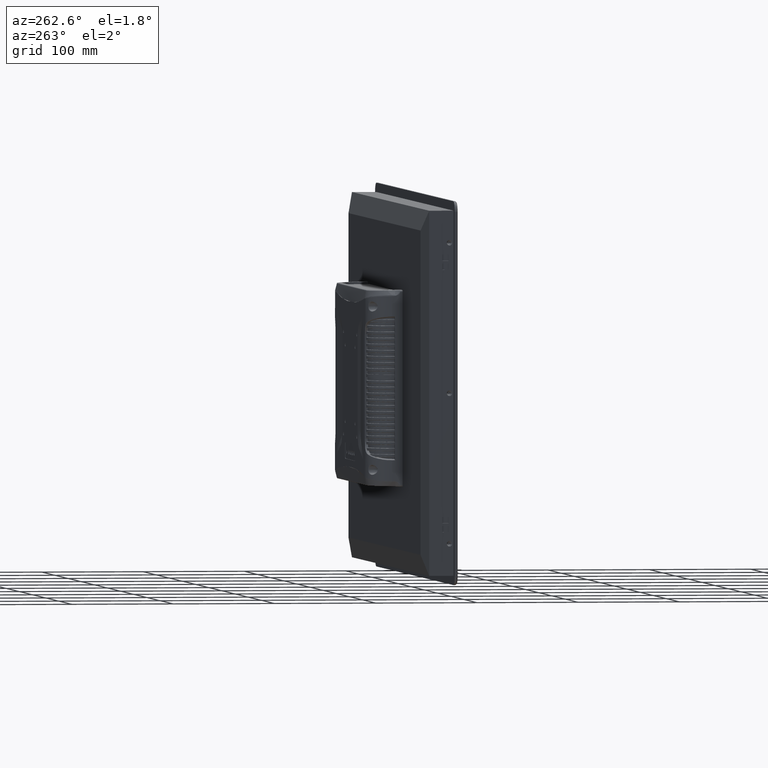
[diagram: clean part render]
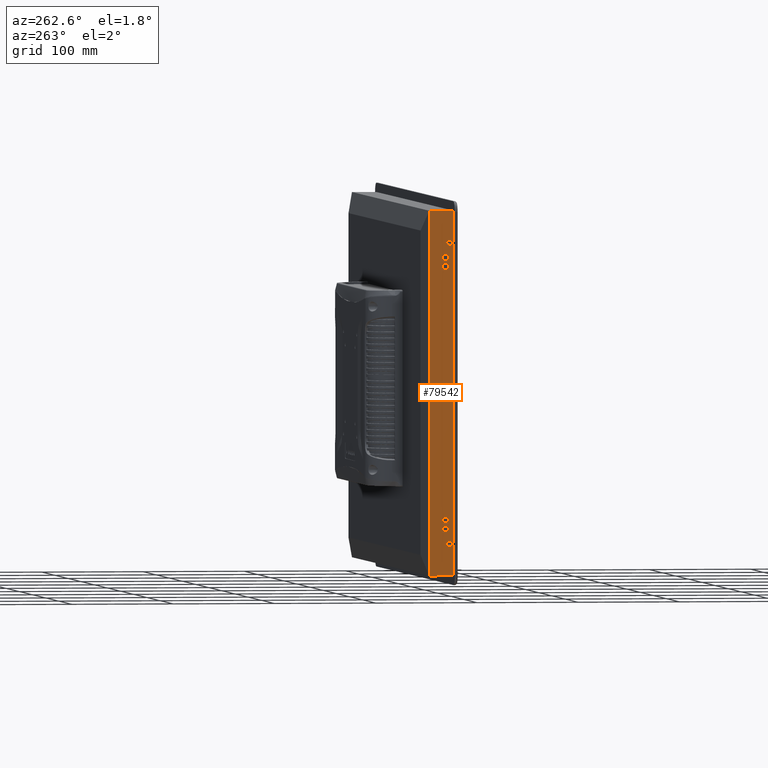
[diagram: same view with one face highlighted and labeled with its STEP entity id]
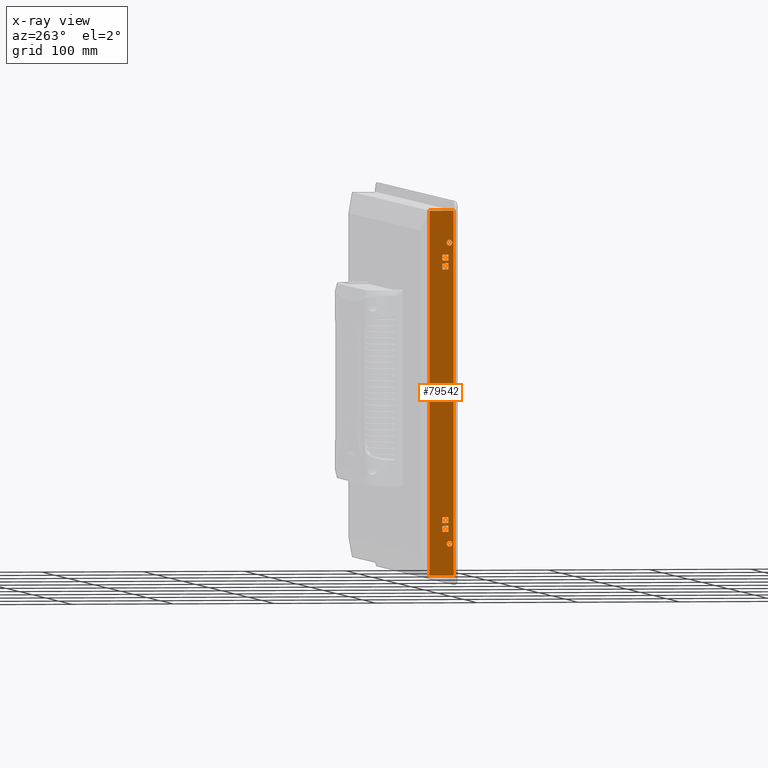
[diagram: x-ray of the same camera — body ghosted, the highlighted face saturated]
A machine part, auxiliary view. The second image highlights one B-rep face of the part: STEP entity #79542.
The next image is the same camera in x-ray: the body ghosted, the highlighted face saturated — about 0% of this face is hidden behind the body in this view.
In plain terms, the highlighted planar face has unit normal (-1, -0, -0).
Its self-contained STEP definition (entity closure, byte-faithful):
#122 = DIRECTION ( 'NONE',  ( 0.0000000000000000000, 0.0000000000000000000, -1.000000000000000000 ) ) ;
#279 = DIRECTION ( 'NONE',  ( 0.0000000000000000000, 0.0000000000000000000, -1.000000000000000000 ) ) ;
#1008 = PLANE ( 'NONE',  #48068 ) ;
#1525 = FACE_BOUND ( 'NONE', #29267, .T. ) ;
#1673 = ORIENTED_EDGE ( 'NONE', *, *, #63782, .T. ) ;
#1805 = VECTOR ( 'NONE', #122, 1000.000000000000000 ) ;
#2274 = LINE ( 'NONE', #30112, #4926 ) ;
#2576 = VERTEX_POINT ( 'NONE', #33419 ) ;
#2615 = VECTOR ( 'NONE', #91192, 1000.000000000000000 ) ;
#2640 = EDGE_CURVE ( 'NONE', #53566, #53206, #83135, .T. ) ;
#3056 = CARTESIAN_POINT ( 'NONE',  ( -293.8999999999999773, 0.5000000000000003331, -2.749999999978054888 ) ) ;
#3110 = LINE ( 'NONE', #87597, #11126 ) ;
#3421 = DIRECTION ( 'NONE',  ( 0.0000000000000000000, 0.0000000000000000000, 1.000000000000000000 ) ) ;
#3621 = DIRECTION ( 'NONE',  ( 0.0000000000000000000, -1.000000000000000000, 0.0000000000000000000 ) ) ;
#3844 = ORIENTED_EDGE ( 'NONE', *, *, #98453, .T. ) ;
#4926 = VECTOR ( 'NONE', #89844, 1000.000000000000000 ) ;
#4964 = DIRECTION ( 'NONE',  ( -0.0000000000000000000, -0.0000000000000000000, 1.000000000000000000 ) ) ;
#5131 = EDGE_LOOP ( 'NONE', ( #65372, #23279, #43103, #76964 ) ) ;
#5720 = EDGE_CURVE ( 'NONE', #53206, #53566, #51456, .T. ) ;
#5787 = CARTESIAN_POINT ( 'NONE',  ( -293.8999999999999773, 0.5000000000000000000, -147.5000000000000284 ) ) ;
#6831 = VERTEX_POINT ( 'NONE', #90597 ) ;
#8489 = LINE ( 'NONE', #100377, #77627 ) ;
#9109 = DIRECTION ( 'NONE',  ( 0.0000000000000000000, -1.000000000000000000, 0.0000000000000000000 ) ) ;
#9350 = DIRECTION ( 'NONE',  ( -0.0000000000000000000, 1.000000000000000000, -0.0000000000000000000 ) ) ;
#9882 = EDGE_CURVE ( 'NONE', #19048, #12127, #27073, .T. ) ;
#10059 = CARTESIAN_POINT ( 'NONE',  ( -293.8999999999999773, 7.499999999999992895, 0.0000000000000000000 ) ) ;
#10304 = EDGE_CURVE ( 'NONE', #51540, #48186, #86747, .T. ) ;
#10478 = EDGE_LOOP ( 'NONE', ( #38991, #30546, #21763, #53658 ) ) ;
#10753 = CARTESIAN_POINT ( 'NONE',  ( -293.8999999999999773, 8.500000000000000000, -178.9000000000000057 ) ) ;
#10925 = CARTESIAN_POINT ( 'NONE',  ( -293.9000000000000341, 8.500000000000000000, 127.2000000000000881 ) ) ;
#11126 = VECTOR ( 'NONE', #38921, 1000.000000000000000 ) ;
#12127 = VERTEX_POINT ( 'NONE', #107124 ) ;
#12961 = CARTESIAN_POINT ( 'NONE',  ( -293.8999999999999773, -3.500000000000000000, 178.9000000000000057 ) ) ;
#13474 = FACE_BOUND ( 'NONE', #84744, .T. ) ;
#14382 = EDGE_CURVE ( 'NONE', #2576, #51540, #98079, .T. ) ;
#14596 = CARTESIAN_POINT ( 'NONE',  ( -293.8999999999999773, 7.499999999999998224, -121.1999999999999744 ) ) ;
#14597 = CARTESIAN_POINT ( 'NONE',  ( -293.9000000000000341, 7.499999999999998224, 127.2000000000000313 ) ) ;
#15712 = DIRECTION ( 'NONE',  ( -0.0000000000000000000, -0.0000000000000000000, 1.000000000000000000 ) ) ;
#16260 = CARTESIAN_POINT ( 'NONE',  ( -293.8999999999999773, 1.499999999999993117, 0.0000000000000000000 ) ) ;
#16416 = LINE ( 'NONE', #87420, #93535 ) ;
#16896 = ORIENTED_EDGE ( 'NONE', *, *, #56053, .T. ) ;
#17059 = DIRECTION ( 'NONE',  ( 1.000000000000000000, 0.0000000000000000000, 0.0000000000000000000 ) ) ;
#17368 = DIRECTION ( 'NONE',  ( -1.000000000000000000, -0.0000000000000000000, -0.0000000000000000000 ) ) ;
#17879 = ORIENTED_EDGE ( 'NONE', *, *, #53831, .T. ) ;
#19048 = VERTEX_POINT ( 'NONE', #68675 ) ;
#20210 = VERTEX_POINT ( 'NONE', #14597 ) ;
#20602 = ORIENTED_EDGE ( 'NONE', *, *, #63893, .T. ) ;
#20640 = VERTEX_POINT ( 'NONE', #71010 ) ;
#21164 = LINE ( 'NONE', #30630, #75700 ) ;
#21763 = ORIENTED_EDGE ( 'NONE', *, *, #24147, .T. ) ;
#22902 = EDGE_LOOP ( 'NONE', ( #29886, #49442, #72015, #16896 ) ) ;
#23216 = ORIENTED_EDGE ( 'NONE', *, *, #14382, .T. ) ;
#23279 = ORIENTED_EDGE ( 'NONE', *, *, #74227, .T. ) ;
#24137 = FACE_BOUND ( 'NONE', #10478, .T. ) ;
#24147 = EDGE_CURVE ( 'NONE', #20210, #19048, #98235, .T. ) ;
#25214 = LINE ( 'NONE', #75666, #2615 ) ;
#25334 = VECTOR ( 'NONE', #15712, 1000.000000000000000 ) ;
#25583 = DIRECTION ( 'NONE',  ( 0.0000000000000000000, 0.0000000000000000000, 1.000000000000000000 ) ) ;
#27057 = EDGE_CURVE ( 'NONE', #56303, #58839, #16416, .T. ) ;
#27073 = LINE ( 'NONE', #77413, #1805 ) ;
#28141 = LINE ( 'NONE', #37437, #70723 ) ;
#28487 = EDGE_CURVE ( 'NONE', #6831, #97777, #77196, .T. ) ;
#28497 = DIRECTION ( 'NONE',  ( 1.000000000000000000, 0.0000000000000000000, 0.0000000000000000000 ) ) ;
#28575 = DIRECTION ( 'NONE',  ( 0.0000000000000000000, 0.0000000000000000000, -1.000000000000000000 ) ) ;
#28921 = DIRECTION ( 'NONE',  ( -0.0000000000000000000, 1.000000000000000000, -0.0000000000000000000 ) ) ;
#29267 = EDGE_LOOP ( 'NONE', ( #105608, #85803, #23216, #97434 ) ) ;
#29611 = DIRECTION ( 'NONE',  ( 0.0000000000000000000, 0.0000000000000000000, 1.000000000000000000 ) ) ;
#29886 = ORIENTED_EDGE ( 'NONE', *, *, #85009, .F. ) ;
#30112 = CARTESIAN_POINT ( 'NONE',  ( -293.8999999999999773, 8.500000000000000000, -121.1999999999999034 ) ) ;
#30160 = AXIS2_PLACEMENT_3D ( 'NONE', #63391, #28497, #29611 ) ;
#30546 = ORIENTED_EDGE ( 'NONE', *, *, #84742, .T. ) ;
#30630 = CARTESIAN_POINT ( 'NONE',  ( -293.8999999999999773, 8.500000000000000000, 136.0000000000001137 ) ) ;
#30712 = VERTEX_POINT ( 'NONE', #109487 ) ;
#31322 = CARTESIAN_POINT ( 'NONE',  ( -293.8999999999999773, 1.499999999999997335, -121.1999999999999744 ) ) ;
#31352 = DIRECTION ( 'NONE',  ( 0.0000000000000000000, -1.000000000000000000, 0.0000000000000000000 ) ) ;
#31553 = EDGE_CURVE ( 'NONE', #48186, #30712, #8489, .T. ) ;
#32160 = ORIENTED_EDGE ( 'NONE', *, *, #67575, .T. ) ;
#32484 = LINE ( 'NONE', #79339, #97561 ) ;
#32716 = DIRECTION ( 'NONE',  ( -0.0000000000000000000, -0.0000000000000000000, 1.000000000000000000 ) ) ;
#33183 = DIRECTION ( 'NONE',  ( 0.0000000000000000000, 0.0000000000000000000, 1.000000000000000000 ) ) ;
#33201 = DIRECTION ( 'NONE',  ( 0.0000000000000000000, 0.0000000000000000000, -1.000000000000000000 ) ) ;
#33419 = CARTESIAN_POINT ( 'NONE',  ( -293.8999999999999773, 7.499999999999998224, -136.0000000000000284 ) ) ;
#34077 = LINE ( 'NONE', #10753, #48711 ) ;
#36777 = DIRECTION ( 'NONE',  ( 0.0000000000000000000, -1.000000000000000000, 0.0000000000000000000 ) ) ;
#36801 = CARTESIAN_POINT ( 'NONE',  ( -293.8999999999999773, 7.499999999999992895, 0.0000000000000000000 ) ) ;
#37437 = CARTESIAN_POINT ( 'NONE',  ( -293.8999999999999773, 8.500000000000000000, 178.9000000000000057 ) ) ;
#37441 = VERTEX_POINT ( 'NONE', #65864 ) ;
#37901 = EDGE_CURVE ( 'NONE', #6831, #100509, #34077, .T. ) ;
#38164 = EDGE_CURVE ( 'NONE', #82350, #107233, #72604, .T. ) ;
#38564 = CARTESIAN_POINT ( 'NONE',  ( -293.8999999999999773, -3.500000000000000444, -178.9000000000000057 ) ) ;
#38724 = FACE_BOUND ( 'NONE', #66651, .T. ) ;
#38798 = VECTOR ( 'NONE', #39041, 1000.000000000000000 ) ;
#38921 = DIRECTION ( 'NONE',  ( -0.0000000000000000000, 1.000000000000000000, -0.0000000000000000000 ) ) ;
#38991 = ORIENTED_EDGE ( 'NONE', *, *, #75341, .T. ) ;
#39041 = DIRECTION ( 'NONE',  ( -0.0000000000000000000, -0.0000000000000000000, 1.000000000000000000 ) ) ;
#39678 = VECTOR ( 'NONE', #9350, 1000.000000000000000 ) ;
#41646 = CARTESIAN_POINT ( 'NONE',  ( -293.8999999999999773, 7.499999999999992895, 0.0000000000000000000 ) ) ;
#41967 = CARTESIAN_POINT ( 'NONE',  ( -293.8999999999999773, 0.5000000000000000000, 0.0000000000000000000 ) ) ;
#42091 = VECTOR ( 'NONE', #28575, 1000.000000000000000 ) ;
#42130 = VERTEX_POINT ( 'NONE', #83215 ) ;
#43103 = ORIENTED_EDGE ( 'NONE', *, *, #27057, .T. ) ;
#43333 = CARTESIAN_POINT ( 'NONE',  ( -293.8999999999999773, 1.499999999999997335, 136.0000000000000284 ) ) ;
#44075 = FACE_OUTER_BOUND ( 'NONE', #22902, .T. ) ;
#44133 = LINE ( 'NONE', #36801, #38798 ) ;
#44712 = DIRECTION ( 'NONE',  ( 1.000000000000000000, 0.0000000000000000000, 0.0000000000000000000 ) ) ;
#45053 = ORIENTED_EDGE ( 'NONE', *, *, #85552, .T. ) ;
#47936 = CARTESIAN_POINT ( 'NONE',  ( -293.8999999999999773, 0.5000000000000000000, -144.7500000000220268 ) ) ;
#48068 = AXIS2_PLACEMENT_3D ( 'NONE', #85321, #17368, #279 ) ;
#48181 = DIRECTION ( 'NONE',  ( 0.0000000000000000000, 0.0000000000000000000, 1.000000000000000000 ) ) ;
#48186 = VERTEX_POINT ( 'NONE', #92981 ) ;
#48711 = VECTOR ( 'NONE', #36777, 1000.000000000000000 ) ;
#48880 = VECTOR ( 'NONE', #70411, 1000.000000000000000 ) ;
#49304 = LINE ( 'NONE', #98270, #99762 ) ;
#49442 = ORIENTED_EDGE ( 'NONE', *, *, #28487, .F. ) ;
#49707 = CIRCLE ( 'NONE', #54199, 2.749999999978214316 ) ;
#51126 = CARTESIAN_POINT ( 'NONE',  ( -293.8999999999999773, 8.500000000000000000, -130.0000000000000000 ) ) ;
#51456 = CIRCLE ( 'NONE', #30160, 2.749999999978054888 ) ;
#51540 = VERTEX_POINT ( 'NONE', #89431 ) ;
#52214 = EDGE_CURVE ( 'NONE', #30712, #2576, #86123, .T. ) ;
#52247 = VECTOR ( 'NONE', #9109, 1000.000000000000000 ) ;
#52258 = CIRCLE ( 'NONE', #67089, 2.749999999977992271 ) ;
#52478 = LINE ( 'NONE', #41646, #105692 ) ;
#53206 = VERTEX_POINT ( 'NONE', #65596 ) ;
#53230 = CARTESIAN_POINT ( 'NONE',  ( -293.8999999999999773, 0.4999999999999523159, 147.5000000000002558 ) ) ;
#53566 = VERTEX_POINT ( 'NONE', #3056 ) ;
#53658 = ORIENTED_EDGE ( 'NONE', *, *, #9882, .T. ) ;
#53831 = EDGE_CURVE ( 'NONE', #37441, #87162, #52478, .T. ) ;
#54199 = AXIS2_PLACEMENT_3D ( 'NONE', #63405, #105291, #55598 ) ;
#54913 = EDGE_CURVE ( 'NONE', #99400, #89112, #75478, .T. ) ;
#55182 = CARTESIAN_POINT ( 'NONE',  ( -293.8999999999999773, 7.499999999999998224, 136.0000000000000284 ) ) ;
#55598 = DIRECTION ( 'NONE',  ( 0.0000000000000000000, 0.0000000000000000000, 1.000000000000000000 ) ) ;
#56053 = EDGE_CURVE ( 'NONE', #100509, #57807, #32484, .T. ) ;
#56303 = VERTEX_POINT ( 'NONE', #60289 ) ;
#57807 = VERTEX_POINT ( 'NONE', #12961 ) ;
#58839 = VERTEX_POINT ( 'NONE', #14596 ) ;
#59438 = EDGE_LOOP ( 'NONE', ( #1673, #45053 ) ) ;
#59888 = AXIS2_PLACEMENT_3D ( 'NONE', #41967, #17059, #25583 ) ;
#60289 = CARTESIAN_POINT ( 'NONE',  ( -293.8999999999999773, 7.499999999999998224, -127.2000000000000313 ) ) ;
#61345 = FACE_BOUND ( 'NONE', #94424, .T. ) ;
#61552 = ORIENTED_EDGE ( 'NONE', *, *, #54913, .T. ) ;
#63391 = CARTESIAN_POINT ( 'NONE',  ( -293.8999999999999773, 0.5000000000000000000, 0.0000000000000000000 ) ) ;
#63405 = CARTESIAN_POINT ( 'NONE',  ( -293.8999999999999773, 0.4999999999999523159, 147.5000000000002558 ) ) ;
#63782 = EDGE_CURVE ( 'NONE', #80495, #42130, #49707, .T. ) ;
#63893 = EDGE_CURVE ( 'NONE', #89112, #99400, #52258, .T. ) ;
#64690 = LINE ( 'NONE', #79851, #42091 ) ;
#65372 = ORIENTED_EDGE ( 'NONE', *, *, #38164, .T. ) ;
#65596 = CARTESIAN_POINT ( 'NONE',  ( -293.8999999999999773, 0.5000000000000000000, 2.749999999978054888 ) ) ;
#65864 = CARTESIAN_POINT ( 'NONE',  ( -293.8999999999999204, 7.499999999999998224, 129.9999999999999716 ) ) ;
#66651 = EDGE_LOOP ( 'NONE', ( #103707, #105901 ) ) ;
#67089 = AXIS2_PLACEMENT_3D ( 'NONE', #5787, #81980, #48181 ) ;
#67575 = EDGE_CURVE ( 'NONE', #103347, #109373, #64690, .T. ) ;
#68675 = CARTESIAN_POINT ( 'NONE',  ( -293.9000000000000341, 1.499999999999997335, 127.2000000000000313 ) ) ;
#69652 = CARTESIAN_POINT ( 'NONE',  ( -293.8999999999999773, 0.5000000000000003331, -150.2499999999780016 ) ) ;
#70411 = DIRECTION ( 'NONE',  ( 0.0000000000000000000, -1.000000000000000000, 0.0000000000000000000 ) ) ;
#70723 = VECTOR ( 'NONE', #3621, 1000.000000000000000 ) ;
#71010 = CARTESIAN_POINT ( 'NONE',  ( -293.8999999999999773, 7.499999999999998224, 121.1999999999999744 ) ) ;
#72015 = ORIENTED_EDGE ( 'NONE', *, *, #37901, .T. ) ;
#72604 = LINE ( 'NONE', #16260, #89786 ) ;
#72956 = CARTESIAN_POINT ( 'NONE',  ( -293.8999999999999204, 1.499999999999998224, 130.0000000000000000 ) ) ;
#74050 = CARTESIAN_POINT ( 'NONE',  ( -293.8999999999999204, 20.50000000000060041, 178.9000000000000057 ) ) ;
#74227 = EDGE_CURVE ( 'NONE', #107233, #56303, #3110, .T. ) ;
#75341 = EDGE_CURVE ( 'NONE', #12127, #20640, #49304, .T. ) ;
#75478 = CIRCLE ( 'NONE', #109494, 2.749999999977992271 ) ;
#75578 = CARTESIAN_POINT ( 'NONE',  ( -293.8999999999999773, 0.5000000000000000000, -147.5000000000000284 ) ) ;
#75666 = CARTESIAN_POINT ( 'NONE',  ( -293.8999999999999204, 8.500000000000000000, 129.9999999999999432 ) ) ;
#75700 = VECTOR ( 'NONE', #31352, 1000.000000000000000 ) ;
#76964 = ORIENTED_EDGE ( 'NONE', *, *, #94595, .T. ) ;
#77196 = LINE ( 'NONE', #108520, #25334 ) ;
#77413 = CARTESIAN_POINT ( 'NONE',  ( -293.8999999999999773, 1.499999999999993117, 0.0000000000000000000 ) ) ;
#77627 = VECTOR ( 'NONE', #33201, 1000.000000000000000 ) ;
#78834 = DIRECTION ( 'NONE',  ( -0.0000000000000000000, -0.0000000000000000000, 1.000000000000000000 ) ) ;
#79339 = CARTESIAN_POINT ( 'NONE',  ( -293.8999999999999773, -3.500000000000000000, 0.0000000000000000000 ) ) ;
#79367 = ORIENTED_EDGE ( 'NONE', *, *, #99650, .T. ) ;
#79542 = ADVANCED_FACE ( 'NONE', ( #61345, #38724, #94558, #24137, #13474, #101130, #1525, #44075 ), #1008, .T. ) ;
#79851 = CARTESIAN_POINT ( 'NONE',  ( -293.8999999999999773, 1.499999999999993117, 0.0000000000000000000 ) ) ;
#80495 = VERTEX_POINT ( 'NONE', #84218 ) ;
#81980 = DIRECTION ( 'NONE',  ( 1.000000000000000000, 0.0000000000000000000, 0.0000000000000000000 ) ) ;
#82350 = VERTEX_POINT ( 'NONE', #31322 ) ;
#83135 = CIRCLE ( 'NONE', #59888, 2.749999999978054888 ) ;
#83215 = CARTESIAN_POINT ( 'NONE',  ( -293.8999999999999773, 3.249999999978074872, 147.5000000000003411 ) ) ;
#83523 = VECTOR ( 'NONE', #78834, 1000.000000000000000 ) ;
#84218 = CARTESIAN_POINT ( 'NONE',  ( -293.8999999999999773, -2.249999999978379073, 147.5000000000003411 ) ) ;
#84742 = EDGE_CURVE ( 'NONE', #20640, #20210, #44133, .T. ) ;
#84744 = EDGE_LOOP ( 'NONE', ( #3844, #17879, #79367, #32160 ) ) ;
#84959 = DIRECTION ( 'NONE',  ( 0.0000000000000000000, 0.0000000000000000000, -1.000000000000000000 ) ) ;
#85009 = EDGE_CURVE ( 'NONE', #97777, #57807, #28141, .T. ) ;
#85321 = CARTESIAN_POINT ( 'NONE',  ( -293.8999999999999773, 20.50000000000000000, 178.9000000000000057 ) ) ;
#85552 = EDGE_CURVE ( 'NONE', #42130, #80495, #93000, .T. ) ;
#85803 = ORIENTED_EDGE ( 'NONE', *, *, #52214, .T. ) ;
#86123 = LINE ( 'NONE', #86971, #39678 ) ;
#86747 = LINE ( 'NONE', #51126, #52247 ) ;
#86971 = CARTESIAN_POINT ( 'NONE',  ( -293.8999999999999773, 8.500000000000000000, -136.0000000000001137 ) ) ;
#87162 = VERTEX_POINT ( 'NONE', #55182 ) ;
#87420 = CARTESIAN_POINT ( 'NONE',  ( -293.8999999999999773, 7.499999999999992895, 0.0000000000000000000 ) ) ;
#87597 = CARTESIAN_POINT ( 'NONE',  ( -293.8999999999999773, 8.500000000000000000, -127.2000000000000881 ) ) ;
#89112 = VERTEX_POINT ( 'NONE', #47936 ) ;
#89431 = CARTESIAN_POINT ( 'NONE',  ( -293.8999999999999773, 7.499999999999998224, -130.0000000000000000 ) ) ;
#89786 = VECTOR ( 'NONE', #84959, 1000.000000000000000 ) ;
#89844 = DIRECTION ( 'NONE',  ( 0.0000000000000000000, -1.000000000000000000, 0.0000000000000000000 ) ) ;
#90597 = CARTESIAN_POINT ( 'NONE',  ( -293.8999999999999204, 20.50000000000061817, -178.9000000000000909 ) ) ;
#91192 = DIRECTION ( 'NONE',  ( -0.0000000000000000000, 1.000000000000000000, -0.0000000000000000000 ) ) ;
#92756 = AXIS2_PLACEMENT_3D ( 'NONE', #53230, #44712, #3421 ) ;
#92909 = DIRECTION ( 'NONE',  ( 1.000000000000000000, 0.0000000000000000000, 0.0000000000000000000 ) ) ;
#92981 = CARTESIAN_POINT ( 'NONE',  ( -293.8999999999999773, 1.499999999999997335, -130.0000000000000000 ) ) ;
#93000 = CIRCLE ( 'NONE', #92756, 2.749999999978214316 ) ;
#93535 = VECTOR ( 'NONE', #4964, 1000.000000000000000 ) ;
#94424 = EDGE_LOOP ( 'NONE', ( #20602, #61552 ) ) ;
#94558 = FACE_BOUND ( 'NONE', #59438, .T. ) ;
#94595 = EDGE_CURVE ( 'NONE', #58839, #82350, #2274, .T. ) ;
#97434 = ORIENTED_EDGE ( 'NONE', *, *, #10304, .T. ) ;
#97561 = VECTOR ( 'NONE', #103721, 1000.000000000000000 ) ;
#97777 = VERTEX_POINT ( 'NONE', #74050 ) ;
#98079 = LINE ( 'NONE', #10059, #83523 ) ;
#98235 = LINE ( 'NONE', #10925, #48880 ) ;
#98270 = CARTESIAN_POINT ( 'NONE',  ( -293.8999999999999773, 8.500000000000000000, 121.1999999999999034 ) ) ;
#98453 = EDGE_CURVE ( 'NONE', #109373, #37441, #25214, .T. ) ;
#99400 = VERTEX_POINT ( 'NONE', #69652 ) ;
#99650 = EDGE_CURVE ( 'NONE', #87162, #103347, #21164, .T. ) ;
#99762 = VECTOR ( 'NONE', #28921, 1000.000000000000000 ) ;
#100377 = CARTESIAN_POINT ( 'NONE',  ( -293.8999999999999773, 1.499999999999993117, 0.0000000000000000000 ) ) ;
#100509 = VERTEX_POINT ( 'NONE', #38564 ) ;
#101130 = FACE_BOUND ( 'NONE', #5131, .T. ) ;
#103347 = VERTEX_POINT ( 'NONE', #43333 ) ;
#103707 = ORIENTED_EDGE ( 'NONE', *, *, #5720, .T. ) ;
#103721 = DIRECTION ( 'NONE',  ( -0.0000000000000000000, -0.0000000000000000000, 1.000000000000000000 ) ) ;
#105291 = DIRECTION ( 'NONE',  ( 1.000000000000000000, 0.0000000000000000000, 0.0000000000000000000 ) ) ;
#105608 = ORIENTED_EDGE ( 'NONE', *, *, #31553, .T. ) ;
#105692 = VECTOR ( 'NONE', #32716, 1000.000000000000000 ) ;
#105901 = ORIENTED_EDGE ( 'NONE', *, *, #2640, .T. ) ;
#106148 = CARTESIAN_POINT ( 'NONE',  ( -293.8999999999999773, 1.499999999999998224, -127.2000000000000313 ) ) ;
#107124 = CARTESIAN_POINT ( 'NONE',  ( -293.8999999999999773, 1.499999999999998224, 121.1999999999999744 ) ) ;
#107233 = VERTEX_POINT ( 'NONE', #106148 ) ;
#108520 = CARTESIAN_POINT ( 'NONE',  ( -293.8999999999999773, 20.50000000000060041, 0.0000000000000000000 ) ) ;
#109373 = VERTEX_POINT ( 'NONE', #72956 ) ;
#109487 = CARTESIAN_POINT ( 'NONE',  ( -293.8999999999999773, 1.499999999999998224, -136.0000000000000284 ) ) ;
#109494 = AXIS2_PLACEMENT_3D ( 'NONE', #75578, #92909, #33183 ) ;